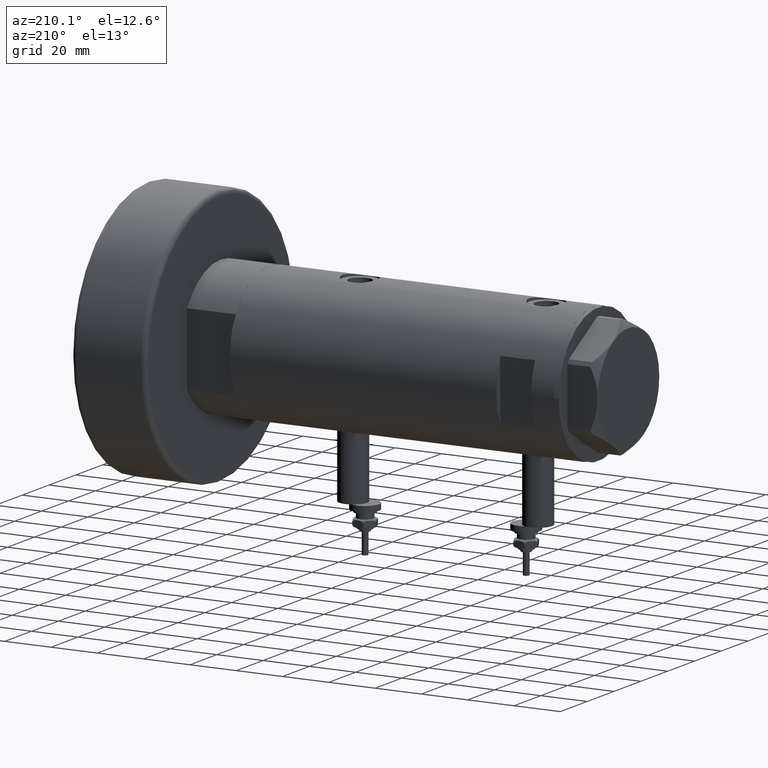
[diagram: clean part render]
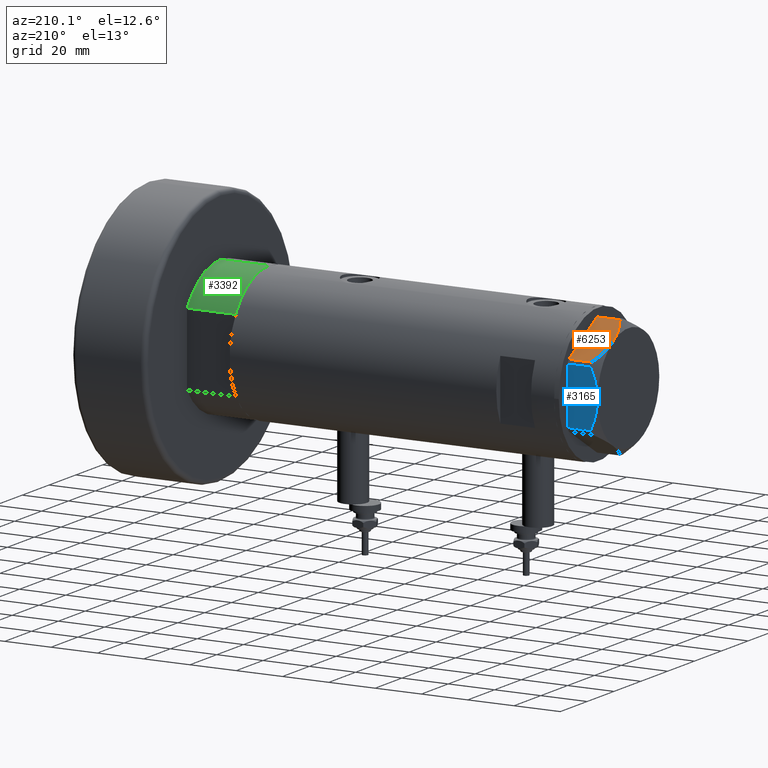
[diagram: same view with three faces highlighted in distinct colors, each labeled with its STEP entity id]
A machine part, auxiliary view with three faces highlighted in distinct colors.
Their STEP definitions:

[orange] entity #6253 — the highlighted planar face has unit normal (-0, -0.5, -0.866).
#16 = VERTEX_POINT ( 'NONE', #2546 ) ;
#215 = EDGE_CURVE ( 'NONE', #5279, #4466, #5968, .T. ) ;
#325 = CARTESIAN_POINT ( 'NONE',  ( 9.197898616903064095, -21.24770314027487927, 12.85271263895580240 ) ) ;
#383 = CARTESIAN_POINT ( 'NONE',  ( 6.946777556903778184, -22.54738849024392877, 12.42689993760377654 ) ) ;
#507 = DIRECTION ( 'NONE',  ( 0.8660254037844345998, 0.5000000000000069944, 0.000000000000000000 ) ) ;
#538 = CARTESIAN_POINT ( 'NONE',  ( 19.07486218897005870, -15.54523556316577171, 11.39727285399141365 ) ) ;
#576 = CARTESIAN_POINT ( 'NONE',  ( 1.854543075583504180E-13, -26.55811238272274366, 13.00000000000000000 ) ) ;
#810 = CARTESIAN_POINT ( 'NONE',  ( 7.836767740116727943, -22.03355241838979595, 12.63731396715694544 ) ) ;
#888 = EDGE_LOOP ( 'NONE', ( #3196, #3569, #4261, #1946, #2475 ) ) ;
#1399 = CARTESIAN_POINT ( 'NONE',  ( 11.50000000000018296, -19.91858428704203732, 13.00000000000000000 ) ) ;
#1545 = CARTESIAN_POINT ( 'NONE',  ( 15.11535457301044616, -17.83125835109845880, 12.70765172847700342 ) ) ;
#1579 = CARTESIAN_POINT ( 'NONE',  ( 18.64279229058406173, -15.79469123530766517, 11.57055225522972286 ) ) ;
#1734 = LINE ( 'NONE', #3687, #5800 ) ;
#1770 = CARTESIAN_POINT ( 'NONE',  ( 0.9699484522386113694, -25.99811238272281955, 9.983800287807545359 ) ) ;
#1864 = CARTESIAN_POINT ( 'NONE',  ( 9.656518383329991906, -20.98291889467260773, 12.90784227772843451 ) ) ;
#1946 = ORIENTED_EDGE ( 'NONE', *, *, #5518, .T. ) ;
#2216 = CARTESIAN_POINT ( 'NONE',  ( 22.03005154776153773, -13.83905619136115561, 0.000000000000000000 ) ) ;
#2252 = CARTESIAN_POINT ( 'NONE',  ( 11.04134848610952879, -20.18338686205092358, 13.00000000000009059 ) ) ;
#2297 = VECTOR ( 'NONE', #2927, 1000.000000000000000 ) ;
#2449 = FACE_OUTER_BOUND ( 'NONE', #888, .T. ) ;
#2475 = ORIENTED_EDGE ( 'NONE', *, *, #215, .F. ) ;
#2513 = DIRECTION ( 'NONE',  ( -0.8660254037844345998, -0.5000000000000069944, 0.000000000000000000 ) ) ;
#2546 = CARTESIAN_POINT ( 'NONE',  ( 0.9699484522387533669, -25.99811238272273428, 0.000000000000000000 ) ) ;
#2735 = EDGE_CURVE ( 'NONE', #16, #5111, #5863, .T. ) ;
#2927 = DIRECTION ( 'NONE',  ( 0.000000000000000000, 0.000000000000000000, -1.000000000000000000 ) ) ;
#3019 = CARTESIAN_POINT ( 'NONE',  ( 17.77001848220202618, -16.29858742851869735, 11.89212886775844780 ) ) ;
#3036 = VECTOR ( 'NONE', #507, 999.9999999999998863 ) ;
#3103 = VERTEX_POINT ( 'NONE', #6113 ) ;
#3196 = ORIENTED_EDGE ( 'NONE', *, *, #3593, .F. ) ;
#3334 = CARTESIAN_POINT ( 'NONE',  ( 22.03005154776154129, -13.83905619136115384, 9.983800287807621743 ) ) ;
#3510 = LINE ( 'NONE', #5458, #2297 ) ;
#3530 = CARTESIAN_POINT ( 'NONE',  ( 20.35958612119338085, -14.80349985506226673, 10.84420102443838552 ) ) ;
#3569 = ORIENTED_EDGE ( 'NONE', *, *, #3753, .T. ) ;
#3593 = EDGE_CURVE ( 'NONE', #3103, #5279, #4930, .T. ) ;
#3687 = CARTESIAN_POINT ( 'NONE',  ( 22.03005154776153773, -13.83905619136115739, 13.00000000000000000 ) ) ;
#3753 = EDGE_CURVE ( 'NONE', #3103, #16, #3510, .T. ) ;
#3819 = CARTESIAN_POINT ( 'NONE',  ( 10.58093321976977030, -20.44920774001120023, 12.98168640760949799 ) ) ;
#3975 = CARTESIAN_POINT ( 'NONE',  ( 11.50000000000018296, -19.91858428704203732, 13.00000000000000000 ) ) ;
#4175 = CARTESIAN_POINT ( 'NONE',  ( 2.626494320835804253, -25.04170517956326236, 10.87778242614345636 ) ) ;
#4261 = ORIENTED_EDGE ( 'NONE', *, *, #2735, .T. ) ;
#4277 = AXIS2_PLACEMENT_3D ( 'NONE', #576, #4878, #2513 ) ;
#4466 = VERTEX_POINT ( 'NONE', #3334 ) ;
#4878 = DIRECTION ( 'NONE',  ( -0.5000000000000069944, 0.8660254037844345998, 0.000000000000000000 ) ) ;
#4901 = CARTESIAN_POINT ( 'NONE',  ( 17.32831362639728923, -16.55360584591992890, 12.04068176582933525 ) ) ;
#4930 = B_SPLINE_CURVE_WITH_KNOTS ( 'NONE', 3,
 ( #1770, #4175, #5163, #383, #810, #325, #1864, #3819, #2252, #1399 ),
 .UNSPECIFIED., .F., .F.,
 ( 4, 2, 2, 2, 4 ),
 ( 0.001228959670438509785, 0.007497079744270810156, 0.01063113978118696706, 0.01219816979964504465, 0.01376519981810312224 ),
 .UNSPECIFIED. ) ;
#4995 = CARTESIAN_POINT ( 'NONE',  ( 21.20080365460329475, -14.31782268570100491, 10.43131750950939107 ) ) ;
#5111 = VERTEX_POINT ( 'NONE', #2216 ) ;
#5163 = CARTESIAN_POINT ( 'NONE',  ( 4.320186229910045306, -24.06385169993492568, 11.62937486882610649 ) ) ;
#5279 = VERTEX_POINT ( 'NONE', #5353 ) ;
#5353 = CARTESIAN_POINT ( 'NONE',  ( 11.50000000000018296, -19.91858428704203732, 13.00000000000000000 ) ) ;
#5418 = CARTESIAN_POINT ( 'NONE',  ( 1.854543075583504180E-13, -26.55811238272274366, 0.000000000000000000 ) ) ;
#5449 = CARTESIAN_POINT ( 'NONE',  ( 13.32175508098997518, -18.86679350063487703, 13.00000000000009059 ) ) ;
#5458 = CARTESIAN_POINT ( 'NONE',  ( 0.9699484522387532559, -25.99811238272273428, 13.00000000000000000 ) ) ;
#5513 = CARTESIAN_POINT ( 'NONE',  ( 22.03005154776154129, -13.83905619136115384, 9.983800287807621743 ) ) ;
#5518 = EDGE_CURVE ( 'NONE', #5111, #4466, #1734, .T. ) ;
#5700 = DIRECTION ( 'NONE',  ( 0.000000000000000000, 0.000000000000000000, 1.000000000000000000 ) ) ;
#5800 = VECTOR ( 'NONE', #5700, 1000.000000000000000 ) ;
#5812 = PLANE ( 'NONE',  #4277 ) ;
#5863 = LINE ( 'NONE', #5418, #3036 ) ;
#5968 = B_SPLINE_CURVE_WITH_KNOTS ( 'NONE', 3,
 ( #3975, #5449, #1545, #4901, #3019, #1579, #538, #3530, #4995, #5513 ),
 .UNSPECIFIED., .F., .F.,
 ( 4, 2, 2, 2, 4 ),
 ( 0.01376519981810312224, 0.01998941321701590279, 0.02154546656674409533, 0.02310151991647228786, 0.02621362661592867294 ),
 .UNSPECIFIED. ) ;
#6113 = CARTESIAN_POINT ( 'NONE',  ( 0.9699484522386113694, -25.99811238272281955, 9.983800287807545359 ) ) ;
#6253 = ADVANCED_FACE ( 'NONE', ( #2449 ), #5812, .F. ) ;

[blue] entity #3165 — the highlighted planar face has unit normal (0, -1, 0).
#11 = PLANE ( 'NONE',  #1781 ) ;
#15 = LINE ( 'NONE', #910, #387 ) ;
#28 = VERTEX_POINT ( 'NONE', #6090 ) ;
#135 = CARTESIAN_POINT ( 'NONE',  ( 22.99999999999985434, 9.734726261263476843, 11.02892470009566139 ) ) ;
#148 = CARTESIAN_POINT ( 'NONE',  ( 22.99999999999995026, 2.373657066004705010E-13, 13.00000000000000000 ) ) ;
#346 = VERTEX_POINT ( 'NONE', #3623 ) ;
#387 = VECTOR ( 'NONE', #4851, 1000.000000000000000 ) ;
#552 = CARTESIAN_POINT ( 'NONE',  ( 22.99999999999992184, 2.643615312305319875, 12.85430456063626714 ) ) ;
#622 = FACE_OUTER_BOUND ( 'NONE', #3274, .T. ) ;
#635 = CARTESIAN_POINT ( 'NONE',  ( 23.00000000000003197, -8.246028007352199651, 11.57113180864690705 ) ) ;
#746 = CARTESIAN_POINT ( 'NONE',  ( 23.00000000000008527, -13.27905619136115867, 0.000000000000000000 ) ) ;
#910 = CARTESIAN_POINT ( 'NONE',  ( 23.00000000000007461, -12.15905619136117721, 13.00000000000000000 ) ) ;
#1035 = CARTESIAN_POINT ( 'NONE',  ( 22.99999999999995026, 2.373657066004705010E-13, 13.00000000000000000 ) ) ;
#1092 = CARTESIAN_POINT ( 'NONE',  ( 22.99999999999982947, 11.68282849742354301, 10.20637235269540888 ) ) ;
#1158 = LINE ( 'NONE', #746, #3429 ) ;
#1533 = CARTESIAN_POINT ( 'NONE',  ( 22.99999999999987210, 7.253003311474555126, 11.90327681034763430 ) ) ;
#1560 = DIRECTION ( 'NONE',  ( 1.032024811306395780E-14, -1.000000000000000000, 0.000000000000000000 ) ) ;
#1567 = EDGE_CURVE ( 'NONE', #346, #28, #1158, .T. ) ;
#1781 = AXIS2_PLACEMENT_3D ( 'NONE', #3993, #5403, #1560 ) ;
#1871 = CARTESIAN_POINT ( 'NONE',  ( 22.99999999999982236, 12.15905619136166571, 13.00000000000000000 ) ) ;
#2104 = CARTESIAN_POINT ( 'NONE',  ( 23.00000000000007461, -12.15905619136117544, 9.983800287807614637 ) ) ;
#2171 = VERTEX_POINT ( 'NONE', #2375 ) ;
#2352 = CARTESIAN_POINT ( 'NONE',  ( 23.00000000000007461, -12.15905619136117544, 9.983800287807614637 ) ) ;
#2375 = CARTESIAN_POINT ( 'NONE',  ( 22.99999999999995026, 2.373657066004705010E-13, 13.00000000000000000 ) ) ;
#2554 = CARTESIAN_POINT ( 'NONE',  ( 22.99999999999982236, 12.15905619136166038, 9.983800287807609308 ) ) ;
#2566 = CARTESIAN_POINT ( 'NONE',  ( 23.00000000000001421, -6.734330413511261604, 12.03938974125266448 ) ) ;
#2627 = CARTESIAN_POINT ( 'NONE',  ( 23.00000000000006750, -11.20825071633899483, 10.42817330637845608 ) ) ;
#2895 = CARTESIAN_POINT ( 'NONE',  ( 22.99999999999993960, 1.063773509315898647, 12.98143808360683060 ) ) ;
#2934 = EDGE_CURVE ( 'NONE', #3584, #2171, #4477, .T. ) ;
#2971 = CARTESIAN_POINT ( 'NONE',  ( 22.99999999999994671, 0.5295934231899315225, 13.00000000000009770 ) ) ;
#3055 = CARTESIAN_POINT ( 'NONE',  ( 23.00000000000005684, -10.23890159976106240, 10.84081242829091529 ) ) ;
#3091 = ORIENTED_EDGE ( 'NONE', *, *, #3248, .F. ) ;
#3162 = DIRECTION ( 'NONE',  ( -1.032024811306395780E-14, 1.000000000000000000, 0.000000000000000000 ) ) ;
#3165 = ADVANCED_FACE ( 'NONE', ( #622 ), #11, .F. ) ;
#3169 = ORIENTED_EDGE ( 'NONE', *, *, #4893, .T. ) ;
#3229 = VERTEX_POINT ( 'NONE', #3964 ) ;
#3248 = EDGE_CURVE ( 'NONE', #2171, #3229, #5784, .T. ) ;
#3274 = EDGE_LOOP ( 'NONE', ( #5832, #3169, #4994, #6270, #3091 ) ) ;
#3429 = VECTOR ( 'NONE', #3162, 1000.000000000000000 ) ;
#3486 = CARTESIAN_POINT ( 'NONE',  ( 22.99999999999986500, 8.252113629125442884, 11.58164206268022056 ) ) ;
#3515 = CARTESIAN_POINT ( 'NONE',  ( 22.99999999999984368, 11.20155944044835472, 10.42110268263274264 ) ) ;
#3584 = VERTEX_POINT ( 'NONE', #2352 ) ;
#3623 = CARTESIAN_POINT ( 'NONE',  ( 23.00000000000007461, -12.15905619136117721, 0.000000000000000000 ) ) ;
#3771 = DIRECTION ( 'NONE',  ( 0.000000000000000000, 0.000000000000000000, 1.000000000000000000 ) ) ;
#3964 = CARTESIAN_POINT ( 'NONE',  ( 22.99999999999982236, 12.15905619136166038, 9.983800287807609308 ) ) ;
#3993 = CARTESIAN_POINT ( 'NONE',  ( 23.00000000000008527, -13.27905619136115867, 13.00000000000000000 ) ) ;
#4070 = CARTESIAN_POINT ( 'NONE',  ( 23.00000000000004263, -8.748091966971225375, 11.39681897828457124 ) ) ;
#4094 = CARTESIAN_POINT ( 'NONE',  ( 22.99999999999999289, -4.194757081058820170, 12.70300035152520479 ) ) ;
#4358 = VECTOR ( 'NONE', #3771, 1000.000000000000000 ) ;
#4477 = B_SPLINE_CURVE_WITH_KNOTS ( 'NONE', 3,
 ( #2104, #2627, #3055, #4070, #635, #5027, #2566, #4094, #5515, #148 ),
 .UNSPECIFIED., .F., .F.,
 ( 4, 2, 2, 2, 4 ),
 ( 0.03516523594057416324, 0.03831677594541234994, 0.03989254594783143981, 0.04146831595025052969, 0.04777139595992689614 ),
 .UNSPECIFIED. ) ;
#4851 = DIRECTION ( 'NONE',  ( 0.000000000000000000, 0.000000000000000000, -1.000000000000000000 ) ) ;
#4893 = EDGE_CURVE ( 'NONE', #3584, #346, #15, .T. ) ;
#4915 = CARTESIAN_POINT ( 'NONE',  ( 22.99999999999992539, 2.119709279062088836, 12.90853521217320043 ) ) ;
#4994 = ORIENTED_EDGE ( 'NONE', *, *, #1567, .T. ) ;
#5027 = CARTESIAN_POINT ( 'NONE',  ( 23.00000000000002132, -7.239756182922042704, 11.89218606342284978 ) ) ;
#5308 = LINE ( 'NONE', #1871, #4358 ) ;
#5403 = DIRECTION ( 'NONE',  ( -1.000000000000000000, -1.032024811306395780E-14, 0.000000000000000000 ) ) ;
#5464 = CARTESIAN_POINT ( 'NONE',  ( 22.99999999999990763, 4.203926054642130872, 12.64168122312251263 ) ) ;
#5515 = CARTESIAN_POINT ( 'NONE',  ( 22.99999999999996447, -2.122900714017910584, 13.00000000000008882 ) ) ;
#5754 = EDGE_CURVE ( 'NONE', #28, #3229, #5308, .T. ) ;
#5784 = B_SPLINE_CURVE_WITH_KNOTS ( 'NONE', 3,
 ( #1035, #2971, #2895, #4915, #552, #5464, #5915, #1533, #3486, #135, #5946, #3515, #1092, #2554 ),
 .UNSPECIFIED., .F., .F.,
 ( 4, 2, 2, 2, 2, 2, 4 ),
 ( 0.04777139595992689614, 0.04934380568070229761, 0.05091621540147769215, 0.05406103484302849510, 0.05720585428457929111, 0.05877826400535468565, 0.06035067372613008713 ),
 .UNSPECIFIED. ) ;
#5832 = ORIENTED_EDGE ( 'NONE', *, *, #2934, .F. ) ;
#5915 = CARTESIAN_POINT ( 'NONE',  ( 22.99999999999990052, 5.228918809624289565, 12.43333703384985256 ) ) ;
#5946 = CARTESIAN_POINT ( 'NONE',  ( 22.99999999999984723, 10.22738952213813590, 10.83247031367476687 ) ) ;
#6090 = CARTESIAN_POINT ( 'NONE',  ( 22.99999999999982236, 12.15905619136166571, 0.000000000000000000 ) ) ;
#6270 = ORIENTED_EDGE ( 'NONE', *, *, #5754, .T. ) ;

[green] entity #3392 — the highlighted cylindrical surface (partial cylindrical patch) has radius 29.5 mm, axis along (-1, -0, 0).
#12 = DIRECTION ( 'NONE',  ( 1.000000000000000000, 0.000000000000000000, 0.000000000000000000 ) ) ;
#126 = VERTEX_POINT ( 'NONE', #2432 ) ;
#556 = VERTEX_POINT ( 'NONE', #2130 ) ;
#817 = ORIENTED_EDGE ( 'NONE', *, *, #3391, .F. ) ;
#1103 = VECTOR ( 'NONE', #2087, 1000.000000000000000 ) ;
#1128 = CYLINDRICAL_SURFACE ( 'NONE', #5267, 29.50000000000000355 ) ;
#1159 = DIRECTION ( 'NONE',  ( 0.000000000000000000, 0.000000000000000000, 1.000000000000000000 ) ) ;
#1235 = CARTESIAN_POINT ( 'NONE',  ( 0.000000000000000000, 0.000000000000000000, 21.00000000000000000 ) ) ;
#1463 = DIRECTION ( 'NONE',  ( 0.000000000000000000, 0.000000000000000000, 1.000000000000000000 ) ) ;
#1546 = LINE ( 'NONE', #5213, #2185 ) ;
#1874 = ORIENTED_EDGE ( 'NONE', *, *, #4647, .T. ) ;
#2087 = DIRECTION ( 'NONE',  ( -0.000000000000000000, -0.000000000000000000, 1.000000000000000000 ) ) ;
#2099 = CARTESIAN_POINT ( 'NONE',  ( 0.000000000000000000, 0.000000000000000000, 0.000000000000000000 ) ) ;
#2130 = CARTESIAN_POINT ( 'NONE',  ( -15.66045976336583045, 24.99999999999999645, 21.00000000000000355 ) ) ;
#2185 = VECTOR ( 'NONE', #5609, 1000.000000000000000 ) ;
#2326 = AXIS2_PLACEMENT_3D ( 'NONE', #2483, #1463, #12 ) ;
#2432 = CARTESIAN_POINT ( 'NONE',  ( -29.50000000000000355, 0.000000000000000000, 0.000000000000000000 ) ) ;
#2483 = CARTESIAN_POINT ( 'NONE',  ( 0.000000000000000000, 0.000000000000000000, 21.00000000000000000 ) ) ;
#2531 = DIRECTION ( 'NONE',  ( 1.000000000000000000, 0.000000000000000000, 0.000000000000000000 ) ) ;
#2606 = CARTESIAN_POINT ( 'NONE',  ( -15.66045976336583401, 25.00000000000000000, 0.000000000000000000 ) ) ;
#2617 = AXIS2_PLACEMENT_3D ( 'NONE', #2099, #1159, #2531 ) ;
#3011 = EDGE_CURVE ( 'NONE', #5738, #126, #1546, .T. ) ;
#3072 = DIRECTION ( 'NONE',  ( -1.000000000000000000, 0.000000000000000000, 0.000000000000000000 ) ) ;
#3391 = EDGE_CURVE ( 'NONE', #5023, #556, #5501, .T. ) ;
#3392 = ADVANCED_FACE ( 'NONE', ( #4085 ), #1128, .T. ) ;
#3763 = CIRCLE ( 'NONE', #2326, 29.50000000000000355 ) ;
#3793 = ORIENTED_EDGE ( 'NONE', *, *, #3011, .F. ) ;
#4085 = FACE_OUTER_BOUND ( 'NONE', #4172, .T. ) ;
#4172 = EDGE_LOOP ( 'NONE', ( #3793, #5792, #817, #1874 ) ) ;
#4300 = CARTESIAN_POINT ( 'NONE',  ( -29.50000000000000355, 0.000000000000000000, 21.00000000000000000 ) ) ;
#4647 = EDGE_CURVE ( 'NONE', #5023, #126, #4971, .T. ) ;
#4971 = CIRCLE ( 'NONE', #2617, 29.50000000000000355 ) ;
#5023 = VERTEX_POINT ( 'NONE', #5439 ) ;
#5038 = DIRECTION ( 'NONE',  ( -0.000000000000000000, -0.000000000000000000, -1.000000000000000000 ) ) ;
#5213 = CARTESIAN_POINT ( 'NONE',  ( -29.50000000000000355, 0.000000000000000000, 21.00000000000000000 ) ) ;
#5267 = AXIS2_PLACEMENT_3D ( 'NONE', #1235, #5038, #3072 ) ;
#5439 = CARTESIAN_POINT ( 'NONE',  ( -15.66045976336583401, 25.00000000000000000, 0.000000000000000000 ) ) ;
#5501 = LINE ( 'NONE', #2606, #1103 ) ;
#5609 = DIRECTION ( 'NONE',  ( -0.000000000000000000, -0.000000000000000000, -1.000000000000000000 ) ) ;
#5738 = VERTEX_POINT ( 'NONE', #4300 ) ;
#5792 = ORIENTED_EDGE ( 'NONE', *, *, #5867, .F. ) ;
#5867 = EDGE_CURVE ( 'NONE', #556, #5738, #3763, .T. ) ;